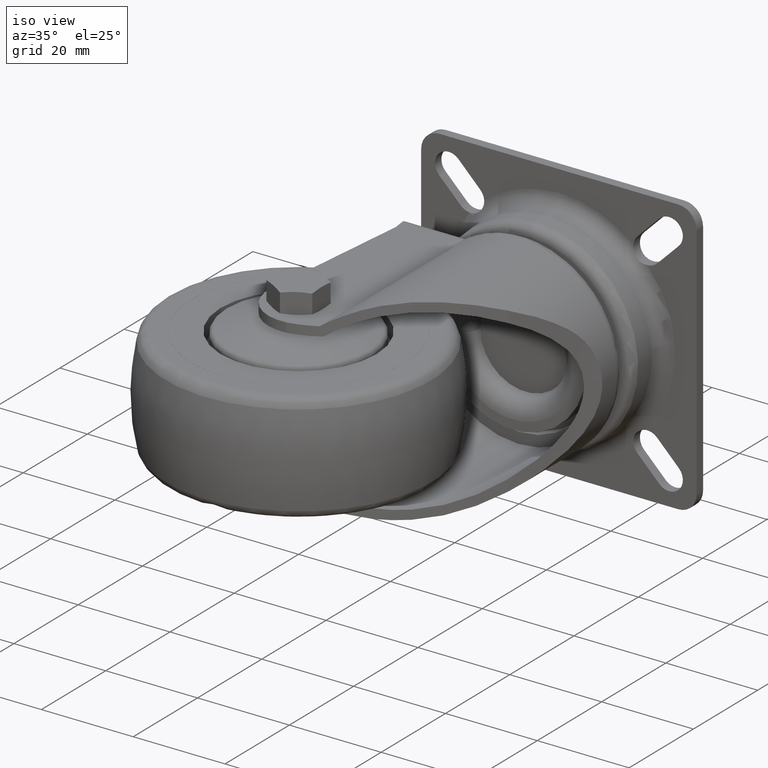
[diagram: clean part render]
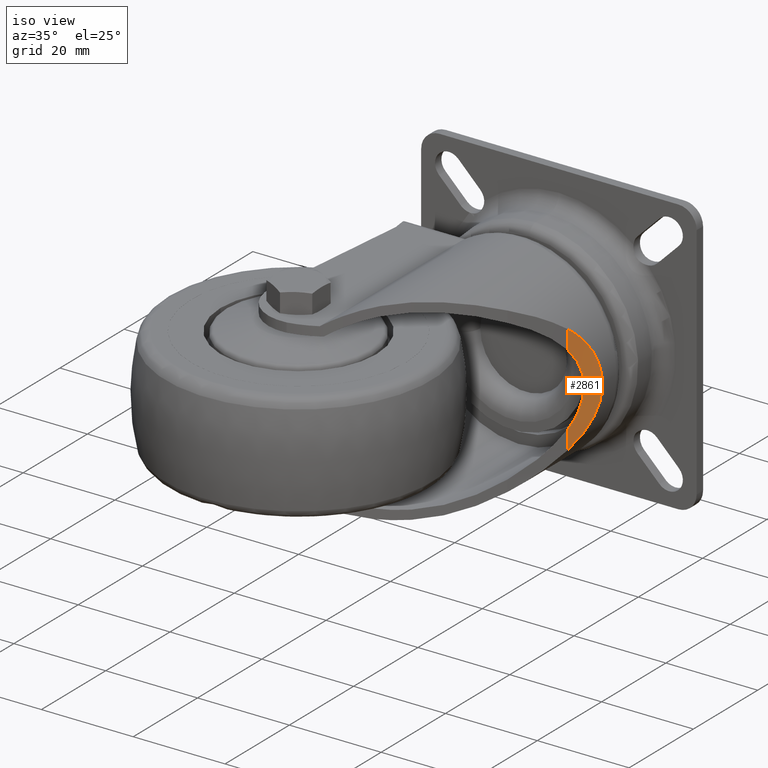
[diagram: same view with one face highlighted and labeled with its STEP entity id]
A machine part, iso view. The second image highlights one B-rep face of the part: STEP entity #2861.
In plain terms, the highlighted cylindrical surface (partial cylindrical patch) has radius 45.36 mm, axis along (0, 0, -1).
Its self-contained STEP definition (entity closure, byte-faithful):
#45=B_SPLINE_CURVE_WITH_KNOTS('',3,(#5017,#5018,#5019,#5020,#5021,#5022,
#5023,#5024,#5025,#5026,#5027,#5028,#5029,#5030),.UNSPECIFIED.,.F.,.F.,
(4,2,2,2,2,2,4),(4.89998772397462,5.34413037046781,5.81096988795556,6.27780940544331,
6.74464892293105,7.2114884404188,7.65563108691199),.UNSPECIFIED.);
#62=B_SPLINE_CURVE_WITH_KNOTS('',3,(#5567,#5568,#5569,#5570,#5571,#5572,
#5573,#5574,#5575,#5576,#5577,#5578,#5579,#5580),.UNSPECIFIED.,.F.,.F.,
(4,2,2,2,2,2,4),(5.47013034433542,5.74292628199146,6.02030398552922,6.29768168906698,
6.57505939260473,6.85243709614249,7.12523303379854),.UNSPECIFIED.);
#275=LINE('',#5581,#406);
#276=LINE('',#5582,#407);
#406=VECTOR('',#4286,1000.);
#407=VECTOR('',#4287,1000.);
#458=CYLINDRICAL_SURFACE('',#3424,45.3600000000034);
#724=FACE_OUTER_BOUND('',#930,.T.);
#930=EDGE_LOOP('',(#2575,#2576,#2577,#2578));
#1335=VERTEX_POINT('',#5015);
#1336=VERTEX_POINT('',#5016);
#1437=VERTEX_POINT('',#5565);
#1438=VERTEX_POINT('',#5566);
#1670=EDGE_CURVE('',#1335,#1336,#45,.T.);
#1828=EDGE_CURVE('',#1437,#1438,#62,.T.);
#1829=EDGE_CURVE('',#1438,#1335,#275,.T.);
#1830=EDGE_CURVE('',#1336,#1437,#276,.T.);
#2575=ORIENTED_EDGE('',*,*,#1828,.T.);
#2576=ORIENTED_EDGE('',*,*,#1829,.T.);
#2577=ORIENTED_EDGE('',*,*,#1670,.T.);
#2578=ORIENTED_EDGE('',*,*,#1830,.T.);
#2861=ADVANCED_FACE('',(#724),#458,.F.);
#3424=AXIS2_PLACEMENT_3D('',#5564,#4284,#4285);
#4284=DIRECTION('center_axis',(0.,0.,-1.));
#4285=DIRECTION('ref_axis',(-1.,0.,0.));
#4286=DIRECTION('',(0.,0.,-1.));
#4287=DIRECTION('',(0.,0.,-1.));
#5015=CARTESIAN_POINT('',(38.7884849647765,28.3920001140623,-11.8966298865654));
#5016=CARTESIAN_POINT('',(38.7884849647765,28.3920001140623,11.8966298865654));
#5017=CARTESIAN_POINT('Ctrl Pts',(38.7884849647765,28.3920001140623,-11.8966298865654));
#5018=CARTESIAN_POINT('Ctrl Pts',(39.3577084548446,29.4327741481987,-11.0454961124443));
#5019=CARTESIAN_POINT('Ctrl Pts',(39.9230062565524,30.3682057710757,-10.0708296597482));
#5020=CARTESIAN_POINT('Ctrl Pts',(40.987286244169,32.0218981173646,-7.75704637269081));
#5021=CARTESIAN_POINT('Ctrl Pts',(41.5075031827322,32.7631075922985,-6.31907166499945));
#5022=CARTESIAN_POINT('Ctrl Pts',(42.2162065765666,33.7405850293505,-3.21885494001732));
#5023=CARTESIAN_POINT('Ctrl Pts',(42.4,33.9787228168666,-1.55613172495916));
#5024=CARTESIAN_POINT('Ctrl Pts',(42.4,33.9787228168666,1.55613172495916));
#5025=CARTESIAN_POINT('Ctrl Pts',(42.2162065765666,33.7405850293505,3.21885494001732));
#5026=CARTESIAN_POINT('Ctrl Pts',(41.5075031827322,32.7631075922985,6.31907166499945));
#5027=CARTESIAN_POINT('Ctrl Pts',(40.987286244169,32.0218981173646,7.75704637269081));
#5028=CARTESIAN_POINT('Ctrl Pts',(39.9230062565524,30.3682057710757,10.0708296597482));
#5029=CARTESIAN_POINT('Ctrl Pts',(39.3577084548446,29.4327741481987,11.0454961124443));
#5030=CARTESIAN_POINT('Ctrl Pts',(38.7884849647765,28.3920001140623,11.8966298865654));
#5564=CARTESIAN_POINT('Origin',(78.5852319148664,6.62623497265687,50.));
#5565=CARTESIAN_POINT('',(38.7884849647765,28.3920001140623,7.74143414736064));
#5566=CARTESIAN_POINT('',(38.7884849647765,28.3920001140623,-7.74143414736064));
#5567=CARTESIAN_POINT('Ctrl Pts',(38.7884849647765,28.3920001140623,7.74143414736061));
#5568=CARTESIAN_POINT('Ctrl Pts',(39.095262182508,28.9529147074523,7.0365128341678));
#5569=CARTESIAN_POINT('Ctrl Pts',(39.3822244398857,29.4489359633227,6.2605810387211));
#5570=CARTESIAN_POINT('Ctrl Pts',(39.8685727026982,30.2647436381469,4.59383393873486));
#5571=CARTESIAN_POINT('Ctrl Pts',(40.0666218309282,30.5826224986121,3.69906106533857));
#5572=CARTESIAN_POINT('Ctrl Pts',(40.3324333376203,31.0048162806491,1.86444162296557));
#5573=CARTESIAN_POINT('Ctrl Pts',(40.4,31.1092426230289,0.924592345125861));
#5574=CARTESIAN_POINT('Ctrl Pts',(40.4,31.1092426230289,-0.924592345125861));
#5575=CARTESIAN_POINT('Ctrl Pts',(40.3324333376203,31.0048162806491,-1.86444162296557));
#5576=CARTESIAN_POINT('Ctrl Pts',(40.0666218309282,30.5826224986121,-3.69906106533857));
#5577=CARTESIAN_POINT('Ctrl Pts',(39.8685727026982,30.2647436381469,-4.59383393873486));
#5578=CARTESIAN_POINT('Ctrl Pts',(39.3822244398857,29.4489359633227,-6.2605810387211));
#5579=CARTESIAN_POINT('Ctrl Pts',(39.095262182508,28.9529147074523,-7.0365128341678));
#5580=CARTESIAN_POINT('Ctrl Pts',(38.7884849647765,28.3920001140623,-7.74143414736061));
#5581=CARTESIAN_POINT('',(38.7884849647765,28.3920001140623,50.));
#5582=CARTESIAN_POINT('',(38.7884849647765,28.3920001140623,50.));